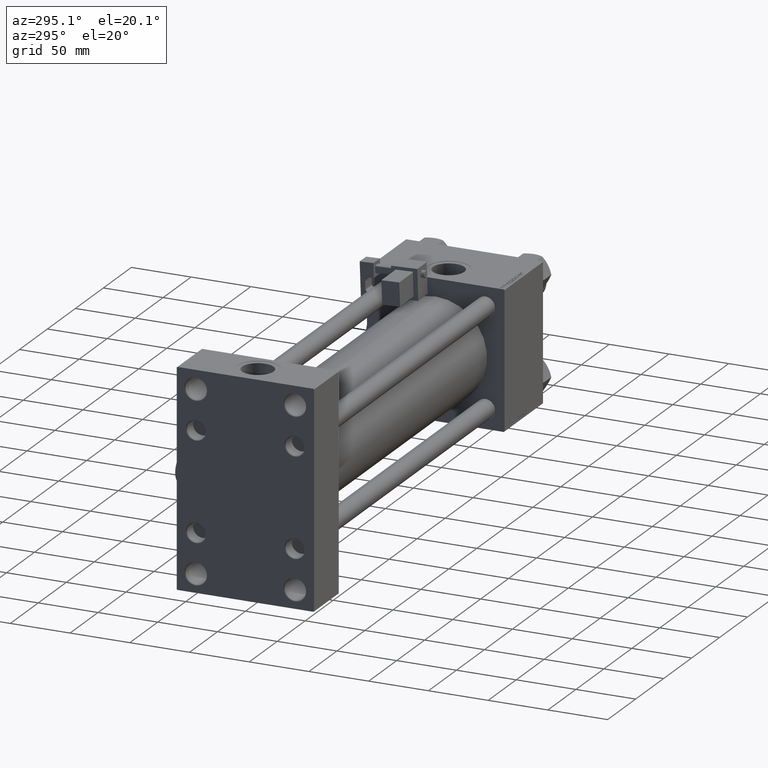
[diagram: clean part render]
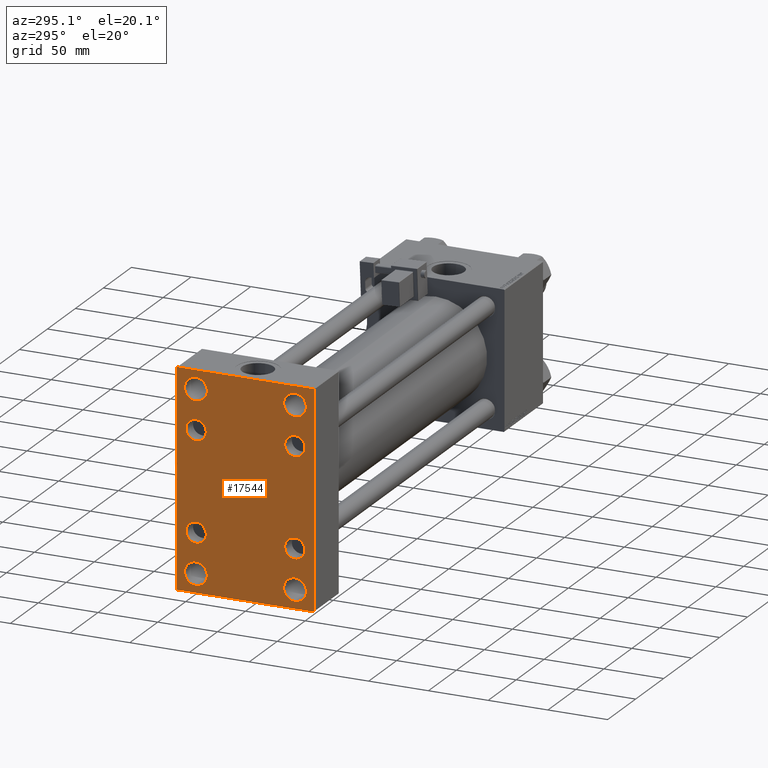
[diagram: same view with one face highlighted and labeled with its STEP entity id]
A machine part, auxiliary view. The second image highlights one B-rep face of the part: STEP entity #17544.
In plain terms, the highlighted planar face has unit normal (-1, 0, 0).
Its self-contained STEP definition (entity closure, byte-faithful):
#551 = DIRECTION ( 'NONE',  ( 0.000000000000000000, 0.000000000000000000, -1.000000000000000000 ) ) ;
#1010 = EDGE_CURVE ( 'NONE', #14953, #13909, #13405, .T. ) ;
#1054 = EDGE_CURVE ( 'NONE', #19392, #45665, #26705, .T. ) ;
#1106 = DIRECTION ( 'NONE',  ( 0.000000000000000000, 0.000000000000000000, 1.000000000000000000 ) ) ;
#1230 = LINE ( 'NONE', #6377, #27385 ) ;
#1326 = FACE_BOUND ( 'NONE', #13086, .T. ) ;
#1810 = EDGE_LOOP ( 'NONE', ( #34090, #46701 ) ) ;
#1886 = VECTOR ( 'NONE', #22490, 1000.000000000000114 ) ;
#2540 = CARTESIAN_POINT ( 'NONE',  ( -0.000000000000000000, -73.49999999999960210, 73.50000000000062528 ) ) ;
#2576 = DIRECTION ( 'NONE',  ( 1.000000000000000000, -0.000000000000000000, 0.000000000000000000 ) ) ;
#2660 = CARTESIAN_POINT ( 'NONE',  ( 0.000000000000000000, 57.50000000000000000, -90.00000000000000000 ) ) ;
#2676 = VERTEX_POINT ( 'NONE', #20193 ) ;
#2744 = AXIS2_PLACEMENT_3D ( 'NONE', #49773, #23866, #42071 ) ;
#2921 = ORIENTED_EDGE ( 'NONE', *, *, #34458, .T. ) ;
#3213 = CARTESIAN_POINT ( 'NONE',  ( 0.000000000000000000, 57.50000000000000000, 89.49999999999997158 ) ) ;
#3540 = EDGE_LOOP ( 'NONE', ( #20988, #11688 ) ) ;
#3748 = VERTEX_POINT ( 'NONE', #39845 ) ;
#3815 = LINE ( 'NONE', #46830, #34340 ) ;
#4223 = VECTOR ( 'NONE', #9389, 1000.000000000000000 ) ;
#4498 = VERTEX_POINT ( 'NONE', #29645 ) ;
#4786 = PLANE ( 'NONE',  #54408 ) ;
#4879 = CARTESIAN_POINT ( 'NONE',  ( 0.000000000000000000, 57.00000000000000000, 90.00000000000000000 ) ) ;
#5110 = LINE ( 'NONE', #25887, #1886 ) ;
#5357 = VERTEX_POINT ( 'NONE', #29137 ) ;
#5476 = VERTEX_POINT ( 'NONE', #39696 ) ;
#5498 = CIRCLE ( 'NONE', #53701, 9.500000000000119016 ) ;
#5721 = CARTESIAN_POINT ( 'NONE',  ( 0.000000000000000000, 41.34999999999999432, 49.84999999999998721 ) ) ;
#6045 = DIRECTION ( 'NONE',  ( 0.000000000000000000, 0.000000000000000000, -1.000000000000000000 ) ) ;
#6377 = CARTESIAN_POINT ( 'NONE',  ( 0.000000000000000000, -73.49999999999882050, -73.50000000000189004 ) ) ;
#6400 = DIRECTION ( 'NONE',  ( 0.000000000000000000, 0.000000000000000000, 1.000000000000000000 ) ) ;
#6652 = CARTESIAN_POINT ( 'NONE',  ( 0.000000000000000000, -41.50000000000000000, 74.50000000000000000 ) ) ;
#6958 = DIRECTION ( 'NONE',  ( 0.000000000000000000, -1.000000000000000000, -2.413528314402514583E-16 ) ) ;
#7116 = EDGE_CURVE ( 'NONE', #14953, #19882, #41584, .T. ) ;
#7173 = VECTOR ( 'NONE', #6045, 1000.000000000000000 ) ;
#7206 = CARTESIAN_POINT ( 'NONE',  ( 0.000000000000000000, -41.34999999999998721, 41.35000000000000853 ) ) ;
#7297 = DIRECTION ( 'NONE',  ( 1.000000000000000000, -0.000000000000000000, 0.000000000000000000 ) ) ;
#7327 = DIRECTION ( 'NONE',  ( 1.000000000000000000, -0.000000000000000000, 0.000000000000000000 ) ) ;
#7469 = CIRCLE ( 'NONE', #16575, 8.499999999999980460 ) ;
#7965 = AXIS2_PLACEMENT_3D ( 'NONE', #51351, #16340, #34561 ) ;
#8400 = CIRCLE ( 'NONE', #10243, 9.500000000000119016 ) ;
#8787 = EDGE_CURVE ( 'NONE', #19468, #31815, #33194, .T. ) ;
#8835 = CARTESIAN_POINT ( 'NONE',  ( 0.000000000000000000, -57.49999999999999289, 89.99999999999998579 ) ) ;
#9389 = DIRECTION ( 'NONE',  ( 0.000000000000000000, 0.7071067811865279218, -0.7071067811865672237 ) ) ;
#10184 = DIRECTION ( 'NONE',  ( -0.000000000000000000, 0.000000000000000000, 1.000000000000000000 ) ) ;
#10243 = AXIS2_PLACEMENT_3D ( 'NONE', #25865, #50933, #25021 ) ;
#10458 = ORIENTED_EDGE ( 'NONE', *, *, #16017, .T. ) ;
#10846 = EDGE_CURVE ( 'NONE', #5476, #38693, #16978, .T. ) ;
#11224 = AXIS2_PLACEMENT_3D ( 'NONE', #23891, #45255, #1106 ) ;
#11688 = ORIENTED_EDGE ( 'NONE', *, *, #41858, .T. ) ;
#11944 = AXIS2_PLACEMENT_3D ( 'NONE', #6652, #41401, #24834 ) ;
#12233 = EDGE_LOOP ( 'NONE', ( #10458, #15264, #50443, #53200, #47203, #21738, #28734, #32580 ) ) ;
#13086 = EDGE_LOOP ( 'NONE', ( #13248, #45377 ) ) ;
#13248 = ORIENTED_EDGE ( 'NONE', *, *, #8787, .T. ) ;
#13342 = EDGE_CURVE ( 'NONE', #40243, #19882, #3815, .T. ) ;
#13346 = FACE_BOUND ( 'NONE', #43533, .T. ) ;
#13405 = LINE ( 'NONE', #8835, #14004 ) ;
#13541 = CIRCLE ( 'NONE', #32627, 9.500000000000119016 ) ;
#13909 = VERTEX_POINT ( 'NONE', #40211 ) ;
#13939 = EDGE_LOOP ( 'NONE', ( #46414, #33591 ) ) ;
#14004 = VECTOR ( 'NONE', #551, 1000.000000000000000 ) ;
#14181 = CIRCLE ( 'NONE', #21432, 8.499999999999980460 ) ;
#14363 = DIRECTION ( 'NONE',  ( 0.000000000000000000, -0.7071067811865622277, 0.7071067811865328068 ) ) ;
#14953 = VERTEX_POINT ( 'NONE', #39889 ) ;
#15264 = ORIENTED_EDGE ( 'NONE', *, *, #51858, .T. ) ;
#15431 = EDGE_LOOP ( 'NONE', ( #51085, #2921 ) ) ;
#15698 = VERTEX_POINT ( 'NONE', #21239 ) ;
#15771 = EDGE_CURVE ( 'NONE', #45665, #19392, #45356, .T. ) ;
#16017 = EDGE_CURVE ( 'NONE', #20000, #23253, #35700, .T. ) ;
#16328 = DIRECTION ( 'NONE',  ( 0.000000000000000000, 0.000000000000000000, 1.000000000000000000 ) ) ;
#16340 = DIRECTION ( 'NONE',  ( 1.000000000000000000, -0.000000000000000000, 0.000000000000000000 ) ) ;
#16575 = AXIS2_PLACEMENT_3D ( 'NONE', #36889, #44081, #6400 ) ;
#16978 = CIRCLE ( 'NONE', #35169, 9.500000000000119016 ) ;
#17544 = ADVANCED_FACE ( 'NONE', ( #17618, #38127, #13346, #55480, #1326, #31825, #39838, #53189, #23280 ), #4786, .T. ) ;
#17618 = FACE_BOUND ( 'NONE', #1810, .T. ) ;
#18491 = ORIENTED_EDGE ( 'NONE', *, *, #54751, .T. ) ;
#18847 = EDGE_CURVE ( 'NONE', #31010, #15698, #13541, .T. ) ;
#19045 = AXIS2_PLACEMENT_3D ( 'NONE', #50304, #7297, #55408 ) ;
#19392 = VERTEX_POINT ( 'NONE', #19705 ) ;
#19468 = VERTEX_POINT ( 'NONE', #46169 ) ;
#19612 = CIRCLE ( 'NONE', #35079, 8.499999999999980460 ) ;
#19705 = CARTESIAN_POINT ( 'NONE',  ( 0.000000000000000000, 41.50000000000000711, -64.99999999999987210 ) ) ;
#19882 = VERTEX_POINT ( 'NONE', #41153 ) ;
#19961 = EDGE_CURVE ( 'NONE', #34966, #54804, #33706, .T. ) ;
#20000 = VERTEX_POINT ( 'NONE', #3213 ) ;
#20193 = CARTESIAN_POINT ( 'NONE',  ( 0.000000000000000000, 41.50000000000000711, 84.00000000000011369 ) ) ;
#20216 = DIRECTION ( 'NONE',  ( -0.000000000000000000, 0.7071067811865524577, 0.7071067811865426878 ) ) ;
#20451 = CARTESIAN_POINT ( 'NONE',  ( 0.000000000000000000, -41.34999999999998721, -41.35000000000000853 ) ) ;
#20601 = DIRECTION ( 'NONE',  ( 0.000000000000000000, 0.000000000000000000, 1.000000000000000000 ) ) ;
#20988 = ORIENTED_EDGE ( 'NONE', *, *, #35539, .T. ) ;
#21239 = CARTESIAN_POINT ( 'NONE',  ( 0.000000000000000000, -41.50000000000000000, 64.99999999999987210 ) ) ;
#21432 = AXIS2_PLACEMENT_3D ( 'NONE', #34836, #55327, #16328 ) ;
#21553 = CARTESIAN_POINT ( 'NONE',  ( 0.000000000000000000, -41.50000000000000000, 74.50000000000000000 ) ) ;
#21738 = ORIENTED_EDGE ( 'NONE', *, *, #7116, .T. ) ;
#22490 = DIRECTION ( 'NONE',  ( -0.000000000000000000, -0.7071067811865474617, -0.7071067811865474617 ) ) ;
#23253 = VERTEX_POINT ( 'NONE', #38551 ) ;
#23280 = FACE_OUTER_BOUND ( 'NONE', #12233, .T. ) ;
#23866 = DIRECTION ( 'NONE',  ( 1.000000000000000000, -0.000000000000000000, 0.000000000000000000 ) ) ;
#23891 = CARTESIAN_POINT ( 'NONE',  ( 0.000000000000000000, 41.50000000000000711, -74.50000000000000000 ) ) ;
#24568 = DIRECTION ( 'NONE',  ( 1.000000000000000000, -0.000000000000000000, 0.000000000000000000 ) ) ;
#24834 = DIRECTION ( 'NONE',  ( 0.000000000000000000, 0.000000000000000000, 1.000000000000000000 ) ) ;
#25021 = DIRECTION ( 'NONE',  ( 0.000000000000000000, 0.000000000000000000, 1.000000000000000000 ) ) ;
#25865 = CARTESIAN_POINT ( 'NONE',  ( 0.000000000000000000, 41.50000000000000711, 74.50000000000000000 ) ) ;
#25887 = CARTESIAN_POINT ( 'NONE',  ( 0.000000000000000000, 73.50000000000000000, -73.50000000000000000 ) ) ;
#26705 = CIRCLE ( 'NONE', #11224, 9.500000000000119016 ) ;
#27385 = VECTOR ( 'NONE', #14363, 1000.000000000000000 ) ;
#28734 = ORIENTED_EDGE ( 'NONE', *, *, #13342, .F. ) ;
#29137 = CARTESIAN_POINT ( 'NONE',  ( 0.000000000000000000, 41.34999999999999432, -32.85000000000002274 ) ) ;
#29314 = VERTEX_POINT ( 'NONE', #49536 ) ;
#29474 = EDGE_LOOP ( 'NONE', ( #34312, #47338 ) ) ;
#29645 = CARTESIAN_POINT ( 'NONE',  ( 0.000000000000000000, -41.34999999999998721, -32.85000000000002984 ) ) ;
#29740 = DIRECTION ( 'NONE',  ( 0.000000000000000000, -1.000000000000000000, -1.206764157201257291E-16 ) ) ;
#30716 = CIRCLE ( 'NONE', #33300, 8.499999999999980460 ) ;
#31010 = VERTEX_POINT ( 'NONE', #49545 ) ;
#31755 = CARTESIAN_POINT ( 'NONE',  ( 0.000000000000000000, 41.50000000000000711, -74.50000000000000000 ) ) ;
#31815 = VERTEX_POINT ( 'NONE', #46806 ) ;
#31825 = FACE_BOUND ( 'NONE', #15431, .T. ) ;
#32576 = CARTESIAN_POINT ( 'NONE',  ( 0.000000000000000000, -41.34999999999998721, -41.35000000000000853 ) ) ;
#32580 = ORIENTED_EDGE ( 'NONE', *, *, #37479, .T. ) ;
#32627 = AXIS2_PLACEMENT_3D ( 'NONE', #21553, #33801, #55991 ) ;
#32928 = VERTEX_POINT ( 'NONE', #5721 ) ;
#32970 = DIRECTION ( 'NONE',  ( 0.000000000000000000, 0.000000000000000000, 1.000000000000000000 ) ) ;
#33194 = CIRCLE ( 'NONE', #55950, 8.499999999999980460 ) ;
#33300 = AXIS2_PLACEMENT_3D ( 'NONE', #20451, #33829, #46089 ) ;
#33342 = DIRECTION ( 'NONE',  ( 0.000000000000000000, 0.000000000000000000, 1.000000000000000000 ) ) ;
#33591 = ORIENTED_EDGE ( 'NONE', *, *, #49417, .T. ) ;
#33706 = LINE ( 'NONE', #2660, #49006 ) ;
#33801 = DIRECTION ( 'NONE',  ( 1.000000000000000000, -0.000000000000000000, 0.000000000000000000 ) ) ;
#33829 = DIRECTION ( 'NONE',  ( 1.000000000000000000, -0.000000000000000000, 0.000000000000000000 ) ) ;
#34090 = ORIENTED_EDGE ( 'NONE', *, *, #56131, .T. ) ;
#34312 = ORIENTED_EDGE ( 'NONE', *, *, #1054, .T. ) ;
#34340 = VECTOR ( 'NONE', #29740, 1000.000000000000000 ) ;
#34458 = EDGE_CURVE ( 'NONE', #55464, #4498, #19612, .T. ) ;
#34541 = EDGE_LOOP ( 'NONE', ( #18491, #44267 ) ) ;
#34561 = DIRECTION ( 'NONE',  ( 0.000000000000000000, 0.000000000000000000, 1.000000000000000000 ) ) ;
#34827 = EDGE_CURVE ( 'NONE', #29314, #32928, #44204, .T. ) ;
#34836 = CARTESIAN_POINT ( 'NONE',  ( 0.000000000000000000, 41.34999999999999432, -41.35000000000000142 ) ) ;
#34966 = VERTEX_POINT ( 'NONE', #54973 ) ;
#35079 = AXIS2_PLACEMENT_3D ( 'NONE', #32576, #45397, #41413 ) ;
#35169 = AXIS2_PLACEMENT_3D ( 'NONE', #37625, #54976, #33342 ) ;
#35539 = EDGE_CURVE ( 'NONE', #5357, #46291, #14181, .T. ) ;
#35700 = LINE ( 'NONE', #44498, #7173 ) ;
#35917 = VECTOR ( 'NONE', #20216, 1000.000000000000000 ) ;
#36889 = CARTESIAN_POINT ( 'NONE',  ( 0.000000000000000000, 41.34999999999999432, 41.35000000000000142 ) ) ;
#37479 = EDGE_CURVE ( 'NONE', #40243, #20000, #48403, .T. ) ;
#37625 = CARTESIAN_POINT ( 'NONE',  ( 0.000000000000000000, -41.50000000000000000, -74.50000000000000000 ) ) ;
#38127 = FACE_BOUND ( 'NONE', #13939, .T. ) ;
#38551 = CARTESIAN_POINT ( 'NONE',  ( 0.000000000000000000, 57.50000000000000000, -89.49999999999994316 ) ) ;
#38615 = EDGE_CURVE ( 'NONE', #4498, #55464, #30716, .T. ) ;
#38693 = VERTEX_POINT ( 'NONE', #55174 ) ;
#38726 = CARTESIAN_POINT ( 'NONE',  ( 0.000000000000000000, 73.50000000000157740, 73.49999999999748468 ) ) ;
#39696 = CARTESIAN_POINT ( 'NONE',  ( 0.000000000000000000, -41.50000000000000000, -64.99999999999987210 ) ) ;
#39838 = FACE_BOUND ( 'NONE', #3540, .T. ) ;
#39845 = CARTESIAN_POINT ( 'NONE',  ( 0.000000000000000000, 41.50000000000000711, 64.99999999999987210 ) ) ;
#39889 = CARTESIAN_POINT ( 'NONE',  ( 0.000000000000000000, -57.49999999999999289, 89.50000000000001421 ) ) ;
#39998 = CIRCLE ( 'NONE', #19045, 9.500000000000119016 ) ;
#40211 = CARTESIAN_POINT ( 'NONE',  ( 0.000000000000000000, -57.49999999999999289, -89.49999999999998579 ) ) ;
#40243 = VERTEX_POINT ( 'NONE', #4879 ) ;
#40508 = CARTESIAN_POINT ( 'NONE',  ( 0.000000000000000000, 41.34999999999999432, 41.35000000000000142 ) ) ;
#40648 = CARTESIAN_POINT ( 'NONE',  ( 0.000000000000000000, 41.50000000000000711, -84.00000000000011369 ) ) ;
#41153 = CARTESIAN_POINT ( 'NONE',  ( 0.000000000000000000, -57.00000000000001421, 89.99999999999998579 ) ) ;
#41401 = DIRECTION ( 'NONE',  ( 1.000000000000000000, -0.000000000000000000, 0.000000000000000000 ) ) ;
#41413 = DIRECTION ( 'NONE',  ( 0.000000000000000000, 0.000000000000000000, 1.000000000000000000 ) ) ;
#41584 = LINE ( 'NONE', #2540, #35917 ) ;
#41858 = EDGE_CURVE ( 'NONE', #46291, #5357, #50679, .T. ) ;
#42071 = DIRECTION ( 'NONE',  ( 0.000000000000000000, 0.000000000000000000, 1.000000000000000000 ) ) ;
#42948 = CARTESIAN_POINT ( 'NONE',  ( 0.000000000000000000, 41.34999999999999432, -49.84999999999998721 ) ) ;
#43122 = ORIENTED_EDGE ( 'NONE', *, *, #10846, .T. ) ;
#43533 = EDGE_LOOP ( 'NONE', ( #43122, #44866 ) ) ;
#44081 = DIRECTION ( 'NONE',  ( 1.000000000000000000, -0.000000000000000000, 0.000000000000000000 ) ) ;
#44204 = CIRCLE ( 'NONE', #45095, 8.499999999999980460 ) ;
#44267 = ORIENTED_EDGE ( 'NONE', *, *, #34827, .T. ) ;
#44498 = CARTESIAN_POINT ( 'NONE',  ( 0.000000000000000000, 57.50000000000000000, 90.00000000000000000 ) ) ;
#44866 = ORIENTED_EDGE ( 'NONE', *, *, #47879, .T. ) ;
#45095 = AXIS2_PLACEMENT_3D ( 'NONE', #40508, #2576, #45322 ) ;
#45255 = DIRECTION ( 'NONE',  ( 1.000000000000000000, -0.000000000000000000, 0.000000000000000000 ) ) ;
#45322 = DIRECTION ( 'NONE',  ( 0.000000000000000000, 0.000000000000000000, 1.000000000000000000 ) ) ;
#45356 = CIRCLE ( 'NONE', #50821, 9.500000000000119016 ) ;
#45377 = ORIENTED_EDGE ( 'NONE', *, *, #47933, .T. ) ;
#45397 = DIRECTION ( 'NONE',  ( 1.000000000000000000, -0.000000000000000000, 0.000000000000000000 ) ) ;
#45578 = CIRCLE ( 'NONE', #11944, 9.500000000000119016 ) ;
#45665 = VERTEX_POINT ( 'NONE', #40648 ) ;
#46089 = DIRECTION ( 'NONE',  ( 0.000000000000000000, 0.000000000000000000, 1.000000000000000000 ) ) ;
#46169 = CARTESIAN_POINT ( 'NONE',  ( 0.000000000000000000, -41.34999999999998721, 49.84999999999999432 ) ) ;
#46291 = VERTEX_POINT ( 'NONE', #42948 ) ;
#46414 = ORIENTED_EDGE ( 'NONE', *, *, #18847, .T. ) ;
#46630 = EDGE_CURVE ( 'NONE', #3748, #2676, #39998, .T. ) ;
#46701 = ORIENTED_EDGE ( 'NONE', *, *, #46630, .T. ) ;
#46806 = CARTESIAN_POINT ( 'NONE',  ( 0.000000000000000000, -41.34999999999998721, 32.85000000000002984 ) ) ;
#46830 = CARTESIAN_POINT ( 'NONE',  ( 0.000000000000000000, 57.50000000000000000, 90.00000000000000000 ) ) ;
#47203 = ORIENTED_EDGE ( 'NONE', *, *, #1010, .F. ) ;
#47338 = ORIENTED_EDGE ( 'NONE', *, *, #15771, .T. ) ;
#47780 = CARTESIAN_POINT ( 'NONE',  ( 0.000000000000000000, -56.99999999999998579, -90.00000000000002842 ) ) ;
#47879 = EDGE_CURVE ( 'NONE', #38693, #5476, #5498, .T. ) ;
#47933 = EDGE_CURVE ( 'NONE', #31815, #19468, #54601, .T. ) ;
#48403 = LINE ( 'NONE', #38726, #4223 ) ;
#49006 = VECTOR ( 'NONE', #6958, 1000.000000000000000 ) ;
#49184 = CARTESIAN_POINT ( 'NONE',  ( 0.000000000000000000, 0.000000000000000000, 0.000000000000000000 ) ) ;
#49374 = DIRECTION ( 'NONE',  ( 0.000000000000000000, 0.000000000000000000, 1.000000000000000000 ) ) ;
#49417 = EDGE_CURVE ( 'NONE', #15698, #31010, #45578, .T. ) ;
#49536 = CARTESIAN_POINT ( 'NONE',  ( 0.000000000000000000, 41.34999999999999432, 32.85000000000002274 ) ) ;
#49545 = CARTESIAN_POINT ( 'NONE',  ( 0.000000000000000000, -41.50000000000000000, 84.00000000000011369 ) ) ;
#49773 = CARTESIAN_POINT ( 'NONE',  ( 0.000000000000000000, -41.34999999999998721, 41.35000000000000853 ) ) ;
#50304 = CARTESIAN_POINT ( 'NONE',  ( 0.000000000000000000, 41.50000000000000711, 74.50000000000000000 ) ) ;
#50443 = ORIENTED_EDGE ( 'NONE', *, *, #19961, .T. ) ;
#50679 = CIRCLE ( 'NONE', #7965, 8.499999999999980460 ) ;
#50778 = DIRECTION ( 'NONE',  ( 1.000000000000000000, -0.000000000000000000, 0.000000000000000000 ) ) ;
#50821 = AXIS2_PLACEMENT_3D ( 'NONE', #31755, #50778, #20601 ) ;
#50933 = DIRECTION ( 'NONE',  ( 1.000000000000000000, -0.000000000000000000, 0.000000000000000000 ) ) ;
#51085 = ORIENTED_EDGE ( 'NONE', *, *, #38615, .T. ) ;
#51351 = CARTESIAN_POINT ( 'NONE',  ( 0.000000000000000000, 41.34999999999999432, -41.35000000000000142 ) ) ;
#51858 = EDGE_CURVE ( 'NONE', #23253, #34966, #5110, .T. ) ;
#52637 = DIRECTION ( 'NONE',  ( -1.000000000000000000, 0.000000000000000000, -0.000000000000000000 ) ) ;
#52786 = EDGE_CURVE ( 'NONE', #54804, #13909, #1230, .T. ) ;
#53189 = FACE_BOUND ( 'NONE', #34541, .T. ) ;
#53200 = ORIENTED_EDGE ( 'NONE', *, *, #52786, .T. ) ;
#53701 = AXIS2_PLACEMENT_3D ( 'NONE', #54883, #7327, #32970 ) ;
#54408 = AXIS2_PLACEMENT_3D ( 'NONE', #49184, #52637, #10184 ) ;
#54601 = CIRCLE ( 'NONE', #2744, 8.499999999999980460 ) ;
#54751 = EDGE_CURVE ( 'NONE', #32928, #29314, #7469, .T. ) ;
#54804 = VERTEX_POINT ( 'NONE', #47780 ) ;
#54883 = CARTESIAN_POINT ( 'NONE',  ( 0.000000000000000000, -41.50000000000000000, -74.50000000000000000 ) ) ;
#54926 = CARTESIAN_POINT ( 'NONE',  ( 0.000000000000000000, -41.34999999999998721, -49.84999999999999432 ) ) ;
#54973 = CARTESIAN_POINT ( 'NONE',  ( 0.000000000000000000, 57.00000000000000000, -90.00000000000000000 ) ) ;
#54976 = DIRECTION ( 'NONE',  ( 1.000000000000000000, -0.000000000000000000, 0.000000000000000000 ) ) ;
#55174 = CARTESIAN_POINT ( 'NONE',  ( 0.000000000000000000, -41.50000000000000000, -84.00000000000011369 ) ) ;
#55327 = DIRECTION ( 'NONE',  ( 1.000000000000000000, -0.000000000000000000, 0.000000000000000000 ) ) ;
#55408 = DIRECTION ( 'NONE',  ( 0.000000000000000000, 0.000000000000000000, 1.000000000000000000 ) ) ;
#55464 = VERTEX_POINT ( 'NONE', #54926 ) ;
#55480 = FACE_BOUND ( 'NONE', #29474, .T. ) ;
#55950 = AXIS2_PLACEMENT_3D ( 'NONE', #7206, #24568, #49374 ) ;
#55991 = DIRECTION ( 'NONE',  ( 0.000000000000000000, 0.000000000000000000, 1.000000000000000000 ) ) ;
#56131 = EDGE_CURVE ( 'NONE', #2676, #3748, #8400, .T. ) ;